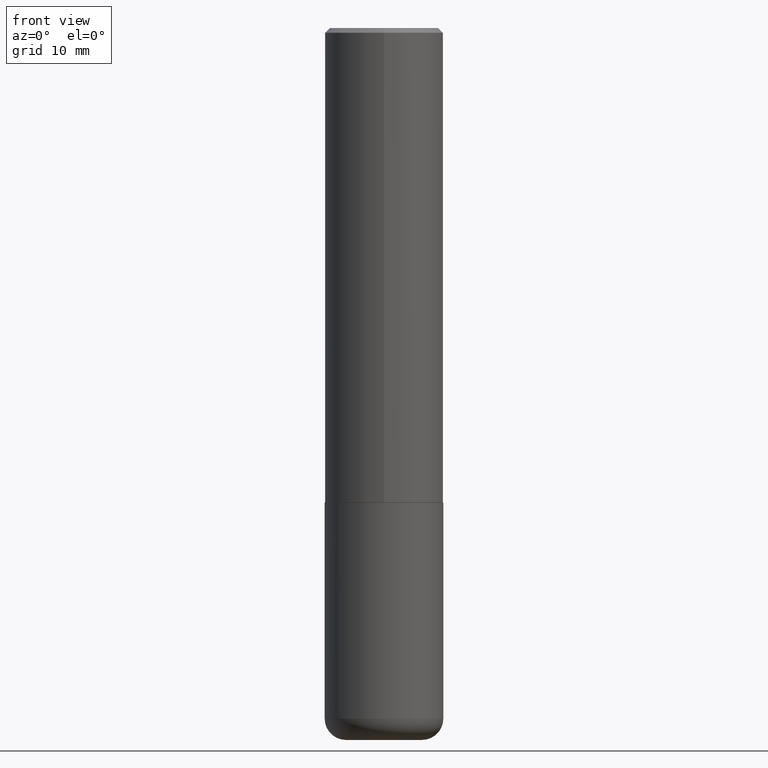
[diagram: clean part render]
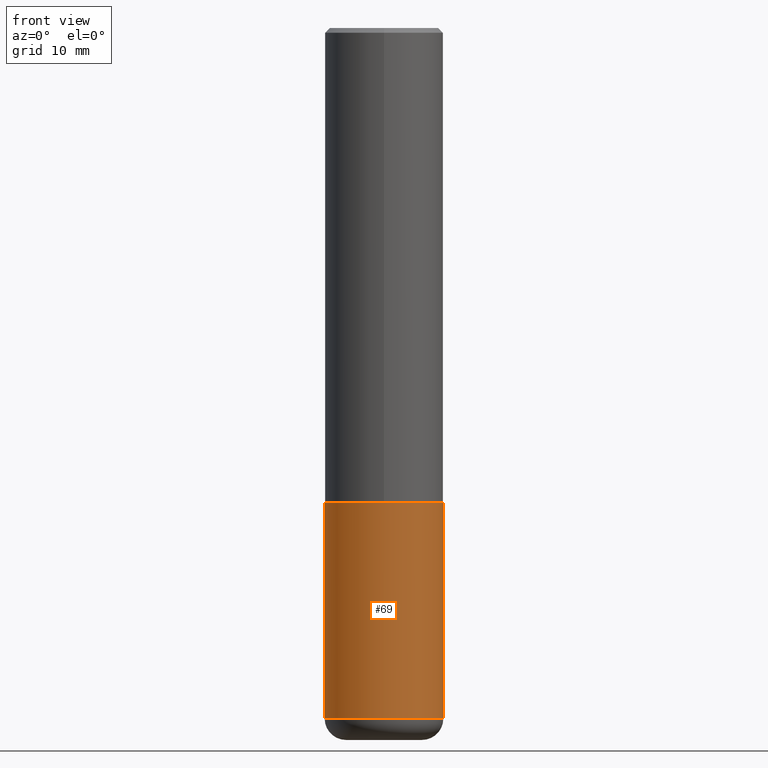
[diagram: same view with one face highlighted and labeled with its STEP entity id]
A machine part, front view. The second image highlights one B-rep face of the part: STEP entity #69.
In plain terms, the highlighted cylindrical surface (partial cylindrical patch) has radius 6.35 mm, axis along (-0, 0, 1).
Its self-contained STEP definition (entity closure, byte-faithful):
#4 = CARTESIAN_POINT ( 'NONE',  ( 4.890937612370273754E-29, -6.982962677686291954E-15, -2.000000000000000444 ) ) ;
#9 = ORIENTED_EDGE ( 'NONE', *, *, #362, .F. ) ;
#29 = CIRCLE ( 'NONE', #416, 0.2500000000000000000 ) ;
#39 = CARTESIAN_POINT ( 'NONE',  ( -0.2500000000000000000, -6.795229847459672846E-15, -2.000000000000000444 ) ) ;
#41 = DIRECTION ( 'NONE',  ( -2.445468806185136877E-29, 3.491481338843145188E-15, 1.000000000000000000 ) ) ;
#47 = EDGE_CURVE ( 'NONE', #72, #244, #54, .T. ) ;
#54 = LINE ( 'NONE', #83, #274 ) ;
#69 = ADVANCED_FACE ( 'NONE', ( #251 ), #80, .T. ) ;
#72 = VERTEX_POINT ( 'NONE', #89 ) ;
#80 = CYLINDRICAL_SURFACE ( 'NONE', #204, 0.2500000000000000000 ) ;
#83 = CARTESIAN_POINT ( 'NONE',  ( 0.2500000000000000000, -1.745740669421566678E-15, 1.219044193948983948E-29 ) ) ;
#89 = CARTESIAN_POINT ( 'NONE',  ( 0.2500000000000000000, -1.190595136545512292E-14, -2.910000000000000586 ) ) ;
#90 = DIRECTION ( 'NONE',  ( 1.000000000000000000, -6.982962677686269077E-15, 0.000000000000000000 ) ) ;
#102 = DIRECTION ( 'NONE',  ( -2.445468806185136597E-29, 3.491481338843145583E-15, 1.000000000000000000 ) ) ;
#106 = ORIENTED_EDGE ( 'NONE', *, *, #359, .T. ) ;
#108 = CARTESIAN_POINT ( 'NONE',  ( 0.2500000000000000000, -8.728703347107858632E-15, -2.000000000000000444 ) ) ;
#110 = ORIENTED_EDGE ( 'NONE', *, *, #390, .F. ) ;
#116 = DIRECTION ( 'NONE',  ( 1.000000000000000000, -6.982962677686266711E-15, 4.876176775795935793E-29 ) ) ;
#154 = DIRECTION ( 'NONE',  ( -2.445468806185136877E-29, 3.491481338843145188E-15, 1.000000000000000000 ) ) ;
#157 = CARTESIAN_POINT ( 'NONE',  ( 7.116314225998749245E-29, -1.016021069603355467E-14, -2.910000000000000586 ) ) ;
#167 = EDGE_LOOP ( 'NONE', ( #9, #106, #369, #110 ) ) ;
#199 = CARTESIAN_POINT ( 'NONE',  ( -0.2500000000000000000, 1.776356839400250465E-15, -1.229733772563726445E-29 ) ) ;
#204 = AXIS2_PLACEMENT_3D ( 'NONE', #383, #352, #116 ) ;
#205 = LINE ( 'NONE', #199, #211 ) ;
#211 = VECTOR ( 'NONE', #41, 39.37007874015748143 ) ;
#235 = VERTEX_POINT ( 'NONE', #375 ) ;
#236 = DIRECTION ( 'NONE',  ( 1.000000000000000000, -6.982962677686266711E-15, 0.000000000000000000 ) ) ;
#244 = VERTEX_POINT ( 'NONE', #108 ) ;
#251 = FACE_OUTER_BOUND ( 'NONE', #167, .T. ) ;
#274 = VECTOR ( 'NONE', #154, 39.37007874015748143 ) ;
#319 = AXIS2_PLACEMENT_3D ( 'NONE', #157, #412, #90 ) ;
#352 = DIRECTION ( 'NONE',  ( -2.445468806185136597E-29, 3.491481338843145583E-15, 1.000000000000000000 ) ) ;
#359 = EDGE_CURVE ( 'NONE', #235, #72, #371, .T. ) ;
#362 = EDGE_CURVE ( 'NONE', #235, #366, #205, .T. ) ;
#366 = VERTEX_POINT ( 'NONE', #39 ) ;
#369 = ORIENTED_EDGE ( 'NONE', *, *, #47, .T. ) ;
#371 = CIRCLE ( 'NONE', #319, 0.2500000000000000555 ) ;
#375 = CARTESIAN_POINT ( 'NONE',  ( -0.2500000000000000000, -8.383853856633304202E-15, -2.910000000000000586 ) ) ;
#383 = CARTESIAN_POINT ( 'NONE',  ( 0.000000000000000000, 0.000000000000000000, 0.000000000000000000 ) ) ;
#390 = EDGE_CURVE ( 'NONE', #366, #244, #29, .T. ) ;
#412 = DIRECTION ( 'NONE',  ( -2.445468806185136597E-29, 3.491481338843145583E-15, 1.000000000000000000 ) ) ;
#416 = AXIS2_PLACEMENT_3D ( 'NONE', #4, #102, #236 ) ;